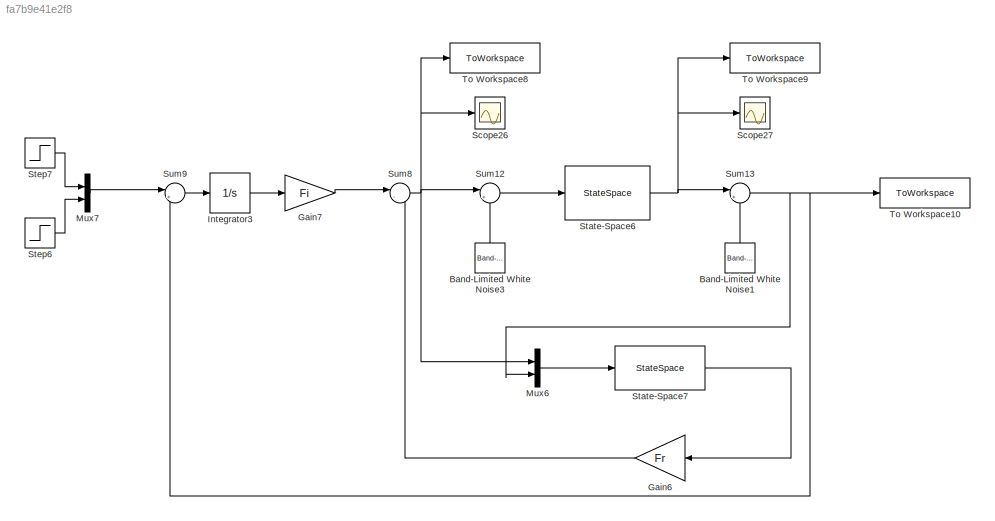
MODEL slx_fa7b9e41e2f8
KIND model
CONFIG AbsTol = auto
CONFIG EnableMultiTasking = off
CONFIG FixedStep = auto
CONFIG MaxStep = auto
CONFIG MinStep = auto
CONFIG RelTol = 1e-3
CONFIG SampleTimeConstraint = Unconstrained
CONFIG SolverName = VariableStepAuto
CONFIG StartTime = 0.0
CONFIG StopTime = 50
BLOCK [Reference] Band-Limited White Noise1  REF=simulink/Sources/Band-Limited
White Noise
  NameLocation = right
  SourceBlock = simulink/Sources/Band-Limited\nWhite Noise
  SourceType = Band-Limited White Noise.
BLOCK [Reference] Band-Limited White Noise3  REF=simulink/Sources/Band-Limited
White Noise
  NameLocation = right
  SourceBlock = simulink/Sources/Band-Limited\nWhite Noise
  SourceType = Band-Limited White Noise.
BLOCK [Gain] Gain6
  Gain = Fr
  Multiplication = Matrix(K*u)
  NameLocation = top
BLOCK [Gain] Gain7
  Gain = Fi
  Multiplication = Matrix(K*u)
BLOCK [Integrator] Integrator3
BLOCK [Mux] Mux6
  DisplayOption = bar
  Inputs = 2
BLOCK [Mux] Mux7
  DisplayOption = bar
  Inputs = 2
BLOCK [Scope] Scope26
  Floating = off
  NumInputPorts = 1
  ScopeSpecificationString = Simulink.scopes.TimeScopeBlockCfg('CurrentConfiguration', extmgr.ConfigurationSet(extmgr.Configuration('Core','General UI',true),extmgr.Configuration('Core','Source UI',true),extmgr.Configuration('Sources','WiredSimulink',true,'DataLoggingVariableName','ScopeData1'),extmgr.Configuration('Visuals','Time Domain',true,'SerializedDisplays',{struct('MinYLimReal','-1.64827','MaxYLimReal','3.8808','YLabe...<+1537ch>
BLOCK [Scope] Scope27
  Floating = off
  NumInputPorts = 1
  ScopeSpecificationString = Simulink.scopes.TimeScopeBlockCfg('CurrentConfiguration', extmgr.ConfigurationSet(extmgr.Configuration('Core','General UI',true),extmgr.Configuration('Core','Source UI',true),extmgr.Configuration('Sources','WiredSimulink',true),extmgr.Configuration('Visuals','Time Domain',true,'SerializedDisplays',{struct('MinYLimReal','-1.64827','MaxYLimReal','3.8808','YLabelReal','','MinYLimMag','0.00000','MaxYL...<+1433ch>
BLOCK [StateSpace] State-Space6
  A = A
  B = B
  C = C
  D = D
  InitialCondition = 0
  ParameterTunability = Unconstrained
BLOCK [StateSpace] State-Space7
  A = A_obs
  B = B_obs
  C = C_obs
  D = D_obs
  InitialCondition = 0
BLOCK [Step] Step6
  After = 2.5
  SampleTime = 0
  Time = 0
BLOCK [Step] Step7
  After = 2
  SampleTime = 0
  Time = 0
BLOCK [Sum] Sum12
  Inputs = |++
BLOCK [Sum] Sum13
  Inputs = |++
BLOCK [Sum] Sum8
  Inputs = |--
BLOCK [Sum] Sum9
  Inputs = |+-
BLOCK [ToWorkspace] To Workspace10
  FixptAsFi = on
  MaxDataPoints = inf
  SampleTime = -1
  SaveFormat = Structure With Time
  VariableName = outputLQ_NOISE_N
BLOCK [ToWorkspace] To Workspace8
  FixptAsFi = on
  MaxDataPoints = inf
  SampleTime = -1
  SaveFormat = Structure With Time
  VariableName = controlLQ_NOISE
BLOCK [ToWorkspace] To Workspace9
  FixptAsFi = on
  MaxDataPoints = inf
  SampleTime = -1
  SaveFormat = Structure With Time
  VariableName = outputLQ_NOISE
LINE Band-Limited White Noise1:1 -> Sum13:2
LINE Band-Limited White Noise3:1 -> Sum12:2
LINE Gain6:1 -> Sum8:2
LINE Gain7:1 -> Sum8:1
LINE Integrator3:1 -> Gain7:1
LINE Mux6:1 -> State-Space7:1
LINE Mux7:1 -> Sum9:1
NET State-Space6:1 -> Scope27:1, Sum13:1, To Workspace9:1
LINE State-Space7:1 -> Gain6:1
LINE Step6:1 -> Mux7:2
LINE Step7:1 -> Mux7:1
LINE Sum12:1 -> State-Space6:1
NET Sum13:1 -> Mux6:2, Sum9:2, To Workspace10:1
NET Sum8:1 -> Mux6:1, Scope26:1, Sum12:1, To Workspace8:1
LINE Sum9:1 -> Integrator3:1
note: NET lines group one-source signal fan-out (src -> all destinations, sorted); 1:1 wires keep LINE
